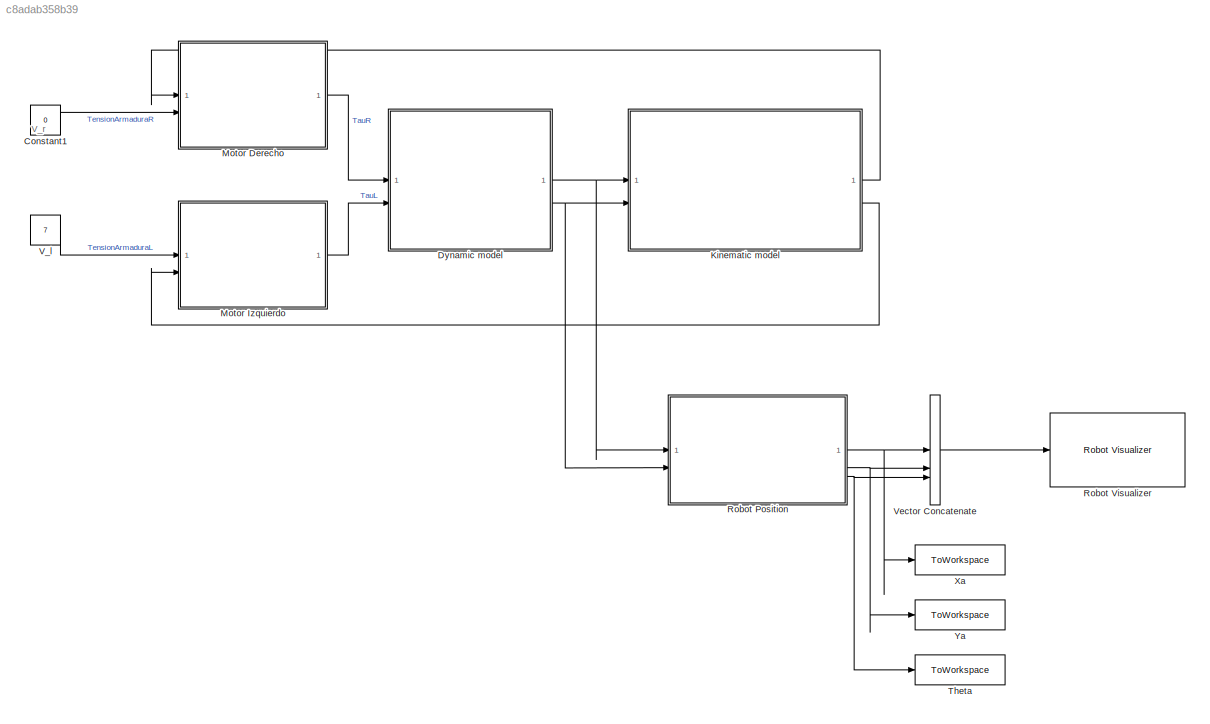
MODEL slx_c8adab358b39
KIND model
CONFIG AbsTol = auto
CONFIG EnableMultiTasking = off
CONFIG FixedStep = auto
CONFIG MaxStep = auto
CONFIG MinStep = auto
CONFIG RelTol = 1e-3
CONFIG SampleTimeConstraint = Unconstrained
CONFIG SolverName = VariableStepAuto
CONFIG StartTime = 0.0
CONFIG StopTime = 20.0
BLOCK [Constant] Constant1
  Value = 0
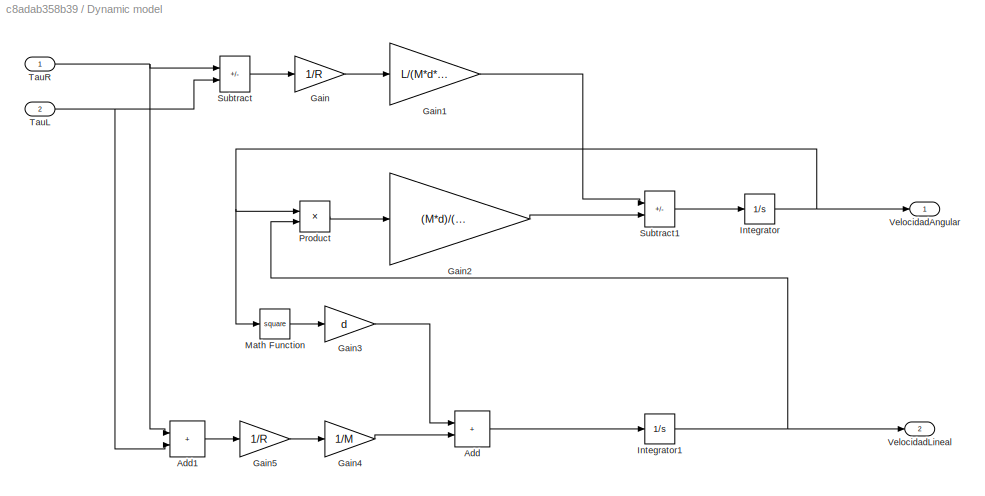
BLOCK [SubSystem] Dynamic model
BLOCK [Sum] Dynamic model/Add
  IconShape = rectangular
BLOCK [Sum] Dynamic model/Add1
  IconShape = rectangular
BLOCK [Gain] Dynamic model/Gain
  Gain = 1/R
BLOCK [Gain] Dynamic model/Gain1
  Gain = L/(M*d*d+J)
BLOCK [Gain] Dynamic model/Gain2
  Gain = (M*d)/(M*d*d+J)
BLOCK [Gain] Dynamic model/Gain3
  Gain = d
BLOCK [Gain] Dynamic model/Gain4
  Gain = 1/M
BLOCK [Gain] Dynamic model/Gain5
  Gain = 1/R
BLOCK [Integrator] Dynamic model/Integrator
BLOCK [Integrator] Dynamic model/Integrator1
BLOCK [Math] Dynamic model/Math Function
  Operator = square
BLOCK [Product] Dynamic model/Product
BLOCK [Sum] Dynamic model/Subtract
  IconShape = rectangular
  Inputs = +-
BLOCK [Sum] Dynamic model/Subtract1
  IconShape = rectangular
  Inputs = +-
BLOCK [Inport] Dynamic model/TauL
  IconDisplay = Port number and signal name
  Port = 2
BLOCK [Inport] Dynamic model/TauR
  IconDisplay = Port number and signal name
BLOCK [Outport] Dynamic model/VelocidadAngular
BLOCK [Outport] Dynamic model/VelocidadLineal
  Port = 2
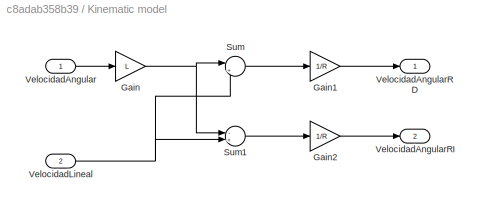
BLOCK [SubSystem] Kinematic model
BLOCK [Gain] Kinematic model/Gain
  Gain = L
BLOCK [Gain] Kinematic model/Gain1
  Gain = 1/R
BLOCK [Gain] Kinematic model/Gain2
  Gain = 1/R
BLOCK [Sum] Kinematic model/Sum
  Inputs = |++
BLOCK [Sum] Kinematic model/Sum1
  Inputs = -+
BLOCK [Inport] Kinematic model/VelocidadAngular
BLOCK [Outport] Kinematic model/VelocidadAngularRD
BLOCK [Outport] Kinematic model/VelocidadAngularRI
  Port = 2
BLOCK [Inport] Kinematic model/VelocidadLineal
  Port = 2
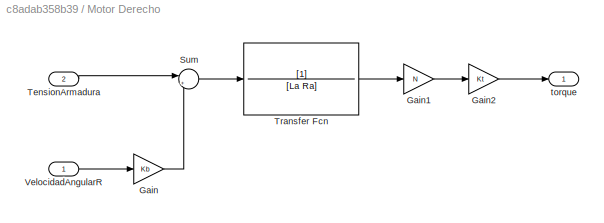
BLOCK [SubSystem] Motor Derecho
BLOCK [Gain] Motor Derecho/Gain
  Gain = Kb
BLOCK [Gain] Motor Derecho/Gain1
  Gain = N
BLOCK [Gain] Motor Derecho/Gain2
  Gain = Kt
BLOCK [Sum] Motor Derecho/Sum
  Inputs = |+-
BLOCK [Inport] Motor Derecho/TensionArmadura
  Port = 2
BLOCK [TransferFcn] Motor Derecho/Transfer Fcn
  Denominator = [La Ra]
BLOCK [Inport] Motor Derecho/VelocidadAngularR
BLOCK [Outport] Motor Derecho/torque
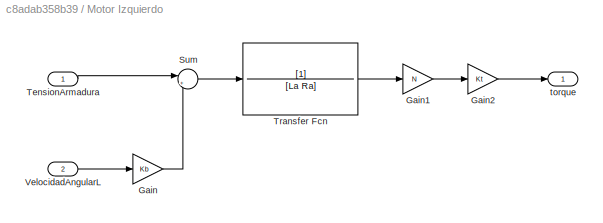
BLOCK [SubSystem] Motor Izquierdo
BLOCK [Gain] Motor Izquierdo/Gain
  Gain = Kb
BLOCK [Gain] Motor Izquierdo/Gain1
  Gain = N
BLOCK [Gain] Motor Izquierdo/Gain2
  Gain = Kt
BLOCK [Sum] Motor Izquierdo/Sum
  Inputs = |+-
BLOCK [Inport] Motor Izquierdo/TensionArmadura
BLOCK [TransferFcn] Motor Izquierdo/Transfer Fcn
  Denominator = [La Ra]
BLOCK [Inport] Motor Izquierdo/VelocidadAngularL
  Port = 2
BLOCK [Outport] Motor Izquierdo/torque
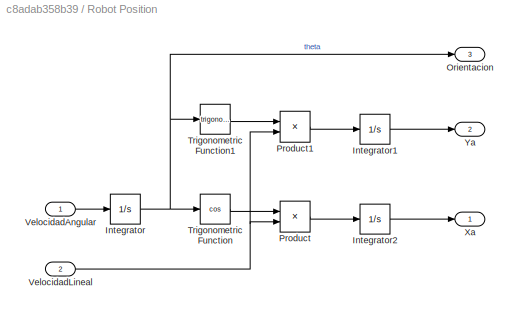
BLOCK [SubSystem] Robot Position
BLOCK [Integrator] Robot Position/Integrator
BLOCK [Integrator] Robot Position/Integrator1
BLOCK [Integrator] Robot Position/Integrator2
BLOCK [Outport] Robot Position/Orientacion
  Port = 3
BLOCK [Product] Robot Position/Product
BLOCK [Product] Robot Position/Product1
BLOCK [Trigonometry] Robot Position/Trigonometric Function
  Operator = cos
BLOCK [Trigonometry] Robot Position/Trigonometric Function1
BLOCK [Inport] Robot Position/VelocidadAngular
BLOCK [Inport] Robot Position/VelocidadLineal
  Port = 2
BLOCK [Outport] Robot Position/Xa
BLOCK [Outport] Robot Position/Ya
  Port = 2
BLOCK [Reference] Robot Visualizer  REF=mobileRoboticsLib/Environments/Robot Visualizer
  SourceBlock = mobileRoboticsLib/Environments/Robot Visualizer
  SourceProductName = Mobile Robotics Simulation Toolbox
  SourceType = Visualizer2D
BLOCK [ToWorkspace] Theta
  FixptAsFi = on
  MaxDataPoints = inf
  SampleTime = -1
  Save2DSignal = 2-D array (concatenate along first dimension)
  SaveFormat = Timeseries
  VariableName = theta
BLOCK [Constant] V_l
  Value = 7
BLOCK [Concatenate] Vector Concatenate
  NumInputs = 3
BLOCK [ToWorkspace] Xa
  FixptAsFi = on
  MaxDataPoints = inf
  SampleTime = -1
  Save2DSignal = 2-D array (concatenate along first dimension)
  SaveFormat = Timeseries
  VariableName = xa
BLOCK [ToWorkspace] Ya
  FixptAsFi = on
  MaxDataPoints = inf
  SampleTime = -1
  Save2DSignal = 2-D array (concatenate along first dimension)
  SaveFormat = Timeseries
  VariableName = ya
ANNOTATION (root): V_r
LINE Constant1:1 -> Motor Derecho:2
LINE Dynamic model/Add1:1 -> Dynamic model/Gain5:1
LINE Dynamic model/Add:1 -> Dynamic model/Integrator1:1
LINE Dynamic model/Gain1:1 -> Dynamic model/Subtract1:1
LINE Dynamic model/Gain2:1 -> Dynamic model/Subtract1:2
LINE Dynamic model/Gain3:1 -> Dynamic model/Add:1
LINE Dynamic model/Gain4:1 -> Dynamic model/Add:2
LINE Dynamic model/Gain5:1 -> Dynamic model/Gain4:1
LINE Dynamic model/Gain:1 -> Dynamic model/Gain1:1
NET Dynamic model/Integrator1:1 -> Dynamic model/Product:2, Dynamic model/VelocidadLineal:1
NET Dynamic model/Integrator:1 -> Dynamic model/Math Function:1, Dynamic model/Product:1, Dynamic model/VelocidadAngular:1
LINE Dynamic model/Math Function:1 -> Dynamic model/Gain3:1
LINE Dynamic model/Product:1 -> Dynamic model/Gain2:1
LINE Dynamic model/Subtract1:1 -> Dynamic model/Integrator:1
LINE Dynamic model/Subtract:1 -> Dynamic model/Gain:1
NET Dynamic model/TauL:1 -> Dynamic model/Add1:2, Dynamic model/Subtract:2
NET Dynamic model/TauR:1 -> Dynamic model/Add1:1, Dynamic model/Subtract:1
NET Dynamic model:1 -> Kinematic model:1, Robot Position:1
NET Dynamic model:2 -> Kinematic model:2, Robot Position:2
LINE Kinematic model/Gain1:1 -> Kinematic model/VelocidadAngularRD:1
LINE Kinematic model/Gain2:1 -> Kinematic model/VelocidadAngularRI:1
NET Kinematic model/Gain:1 -> Kinematic model/Sum1:1, Kinematic model/Sum:1
LINE Kinematic model/Sum1:1 -> Kinematic model/Gain2:1
LINE Kinematic model/Sum:1 -> Kinematic model/Gain1:1
LINE Kinematic model/VelocidadAngular:1 -> Kinematic model/Gain:1
NET Kinematic model/VelocidadLineal:1 -> Kinematic model/Sum1:2, Kinematic model/Sum:2
LINE Kinematic model:1 -> Motor Derecho:1
LINE Kinematic model:2 -> Motor Izquierdo:2
LINE Motor Derecho/Gain1:1 -> Motor Derecho/Gain2:1
LINE Motor Derecho/Gain2:1 -> Motor Derecho/torque:1
LINE Motor Derecho/Gain:1 -> Motor Derecho/Sum:2
LINE Motor Derecho/Sum:1 -> Motor Derecho/Transfer Fcn:1
LINE Motor Derecho/TensionArmadura:1 -> Motor Derecho/Sum:1
LINE Motor Derecho/Transfer Fcn:1 -> Motor Derecho/Gain1:1
LINE Motor Derecho/VelocidadAngularR:1 -> Motor Derecho/Gain:1
LINE Motor Derecho:1 -> Dynamic model:1
LINE Motor Izquierdo/Gain1:1 -> Motor Izquierdo/Gain2:1
LINE Motor Izquierdo/Gain2:1 -> Motor Izquierdo/torque:1
LINE Motor Izquierdo/Gain:1 -> Motor Izquierdo/Sum:2
LINE Motor Izquierdo/Sum:1 -> Motor Izquierdo/Transfer Fcn:1
LINE Motor Izquierdo/TensionArmadura:1 -> Motor Izquierdo/Sum:1
LINE Motor Izquierdo/Transfer Fcn:1 -> Motor Izquierdo/Gain1:1
LINE Motor Izquierdo/VelocidadAngularL:1 -> Motor Izquierdo/Gain:1
LINE Motor Izquierdo:1 -> Dynamic model:2
LINE Robot Position/Integrator1:1 -> Robot Position/Ya:1
LINE Robot Position/Integrator2:1 -> Robot Position/Xa:1
NET Robot Position/Integrator:1 -> Robot Position/Orientacion:1, Robot Position/Trigonometric Function1:1, Robot Position/Trigonometric Function:1
LINE Robot Position/Product1:1 -> Robot Position/Integrator1:1
LINE Robot Position/Product:1 -> Robot Position/Integrator2:1
LINE Robot Position/Trigonometric Function1:1 -> Robot Position/Product1:1
LINE Robot Position/Trigonometric Function:1 -> Robot Position/Product:1
LINE Robot Position/VelocidadAngular:1 -> Robot Position/Integrator:1
NET Robot Position/VelocidadLineal:1 -> Robot Position/Product1:2, Robot Position/Product:2
NET Robot Position:1 -> Vector Concatenate:1, Xa:1
NET Robot Position:2 -> Vector Concatenate:2, Ya:1
NET Robot Position:3 -> Theta:1, Vector Concatenate:3
LINE V_l:1 -> Motor Izquierdo:1
LINE Vector Concatenate:1 -> Robot Visualizer:1
note: NET lines group one-source signal fan-out (src -> all destinations, sorted); 1:1 wires keep LINE
